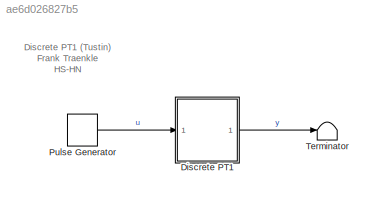
MODEL slx_ae6d026827b5
KIND model
CONFIG AbsTol = auto
CONFIG EnableMultiTasking = on
CONFIG FixedStep = P_Ta
CONFIG InitFcn = pt1_data;
CONFIG MaxStep = auto
CONFIG MinStep = auto
CONFIG RelTol = 1e-3
CONFIG SampleTimeConstraint = Unconstrained
CONFIG Solver = FixedStepDiscrete
CONFIG SolverName = FixedStepDiscrete
CONFIG StartTime = 0.0
CONFIG StopTime = 10e-3
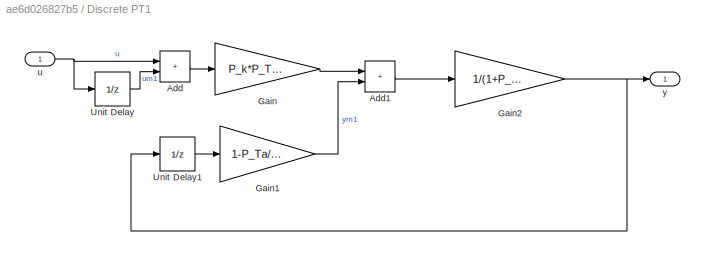
BLOCK [SubSystem] Discrete PT1
  Ports = [1, 1]
  RequestExecContextInheritance = off
  SystemSampleTime = P_Ta
  TreatAsAtomicUnit = on
BLOCK [Sum] Discrete PT1/Add
  IconShape = rectangular
  Ports = [2, 1]
BLOCK [Sum] Discrete PT1/Add1
  IconShape = rectangular
  Ports = [2, 1]
BLOCK [Gain] Discrete PT1/Gain
  Gain = P_k*P_Ta/(2*P_T)
BLOCK [Gain] Discrete PT1/Gain1
  Gain = 1-P_Ta/(2*P_T)
BLOCK [Gain] Discrete PT1/Gain2
  Gain = 1/(1+P_Ta/(2*P_T))
BLOCK [UnitDelay] Discrete PT1/Unit Delay
  HasFrameUpgradeWarning = on
  SampleTime = -1
BLOCK [UnitDelay] Discrete PT1/Unit Delay1
  HasFrameUpgradeWarning = on
  SampleTime = -1
BLOCK [Inport] Discrete PT1/u
BLOCK [Outport] Discrete PT1/y
BLOCK [DiscretePulseGenerator] Pulse Generator
  Period = 2e-3
  Ports = [0, 1]
  PulseType = Time based
  PulseWidth = 50
BLOCK [Terminator] Terminator
ANNOTATION (root): Discrete PT1 (Tustin) Frank Traenkle HS-HN
LINE Discrete PT1/Add1:1 -> Discrete PT1/Gain2:1
LINE Discrete PT1/Add:1 -> Discrete PT1/Gain:1
LINE Discrete PT1/Gain1:1 -> Discrete PT1/Add1:2
NET Discrete PT1/Gain2:1 -> Discrete PT1/Unit Delay1:1, Discrete PT1/y:1
LINE Discrete PT1/Gain:1 -> Discrete PT1/Add1:1
LINE Discrete PT1/Unit Delay1:1 -> Discrete PT1/Gain1:1
LINE Discrete PT1/Unit Delay:1 -> Discrete PT1/Add:2
NET Discrete PT1/u:1 -> Discrete PT1/Add:1, Discrete PT1/Unit Delay:1
LINE Discrete PT1:1 -> Terminator:1
LINE Pulse Generator:1 -> Discrete PT1:1
note: NET lines group one-source signal fan-out (src -> all destinations, sorted); 1:1 wires keep LINE
